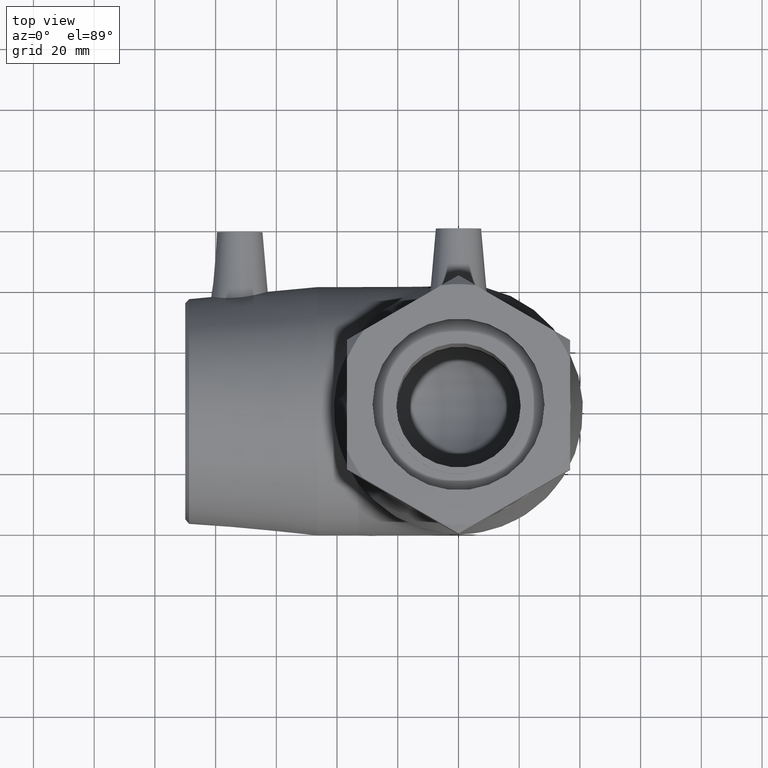
[diagram: clean part render]
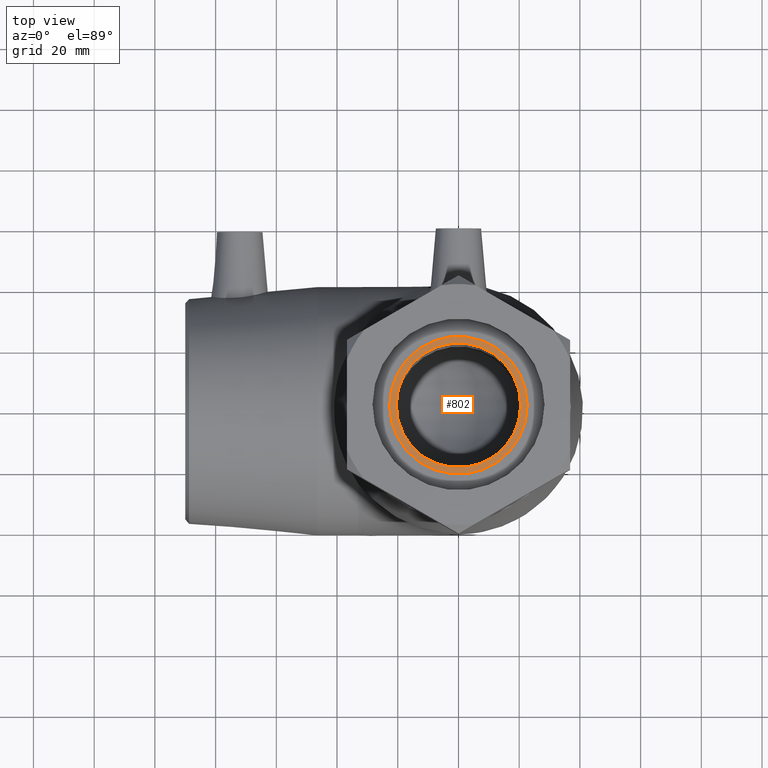
[diagram: same view with one face highlighted and labeled with its STEP entity id]
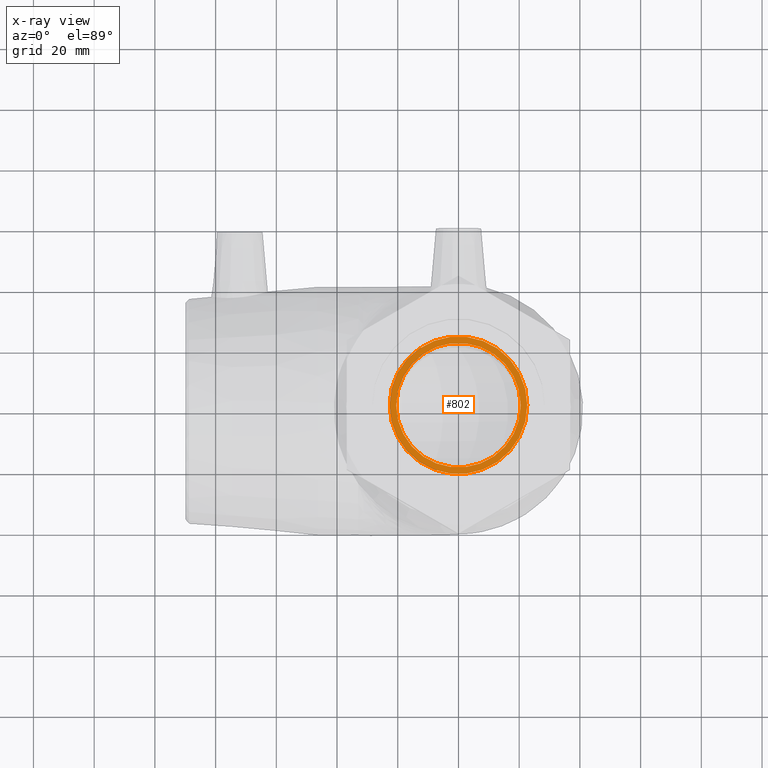
[diagram: x-ray of the same camera — body ghosted, the highlighted face saturated]
A machine part, top view. The second image highlights one B-rep face of the part: STEP entity #802.
The next image is the same camera in x-ray: the body ghosted, the highlighted face saturated — about 0% of this face is hidden behind the body in this view.
In plain terms, the highlighted planar face has unit normal (0, 0, 1).
Its self-contained STEP definition (entity closure, byte-faithful):
#107=PLANE('',#900);
#137=FACE_BOUND('',#277,.T.);
#195=FACE_OUTER_BOUND('',#276,.T.);
#276=EDGE_LOOP('',(#694));
#277=EDGE_LOOP('',(#695));
#355=CIRCLE('',#899,20.5);
#356=CIRCLE('',#901,22.6624);
#433=VERTEX_POINT('',#1475);
#434=VERTEX_POINT('',#1478);
#529=EDGE_CURVE('',#433,#433,#355,.T.);
#530=EDGE_CURVE('',#434,#434,#356,.T.);
#694=ORIENTED_EDGE('',*,*,#530,.F.);
#695=ORIENTED_EDGE('',*,*,#529,.T.);
#802=ADVANCED_FACE('',(#195,#137),#107,.T.);
#899=AXIS2_PLACEMENT_3D('',#1476,#1100,#1101);
#900=AXIS2_PLACEMENT_3D('',#1477,#1102,#1103);
#901=AXIS2_PLACEMENT_3D('',#1479,#1104,#1105);
#1100=DIRECTION('center_axis',(-2.46716227694479E-16,0.,-1.));
#1101=DIRECTION('ref_axis',(1.,0.,-2.46716227694479E-16));
#1102=DIRECTION('center_axis',(2.46716227694479E-16,0.,1.));
#1103=DIRECTION('ref_axis',(1.,0.,0.));
#1104=DIRECTION('center_axis',(-2.46716227694479E-16,0.,-1.));
#1105=DIRECTION('ref_axis',(1.,0.,-2.46716227694479E-16));
#1475=CARTESIAN_POINT('',(-20.5,0.,118.16));
#1476=CARTESIAN_POINT('Origin',(2.91519894643797E-14,0.,118.16));
#1477=CARTESIAN_POINT('Origin',(-22.6624,0.,118.16));
#1478=CARTESIAN_POINT('',(-22.6624,0.,118.16));
#1479=CARTESIAN_POINT('Origin',(2.91519894643797E-14,0.,118.16));